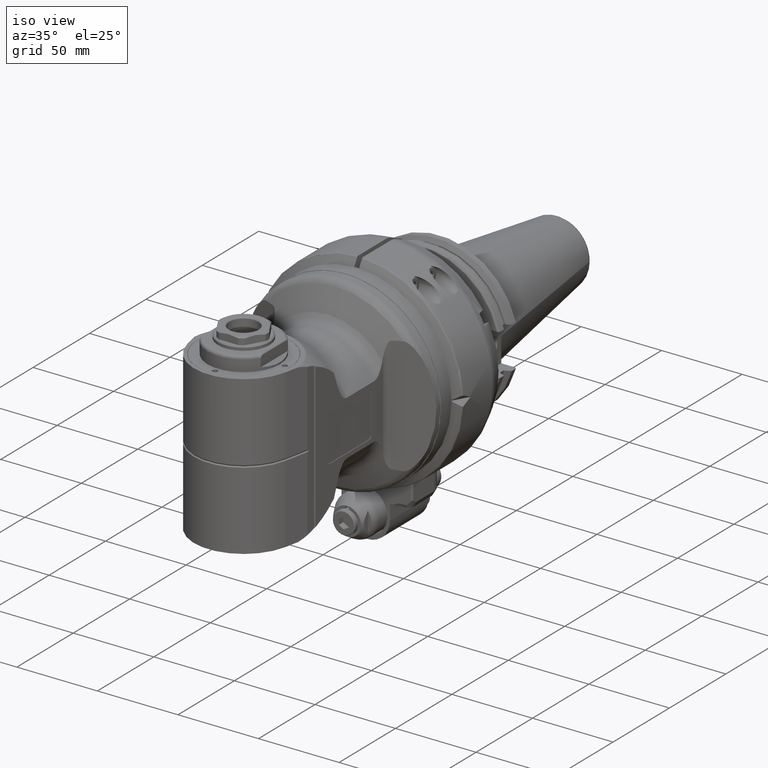
[diagram: clean part render]
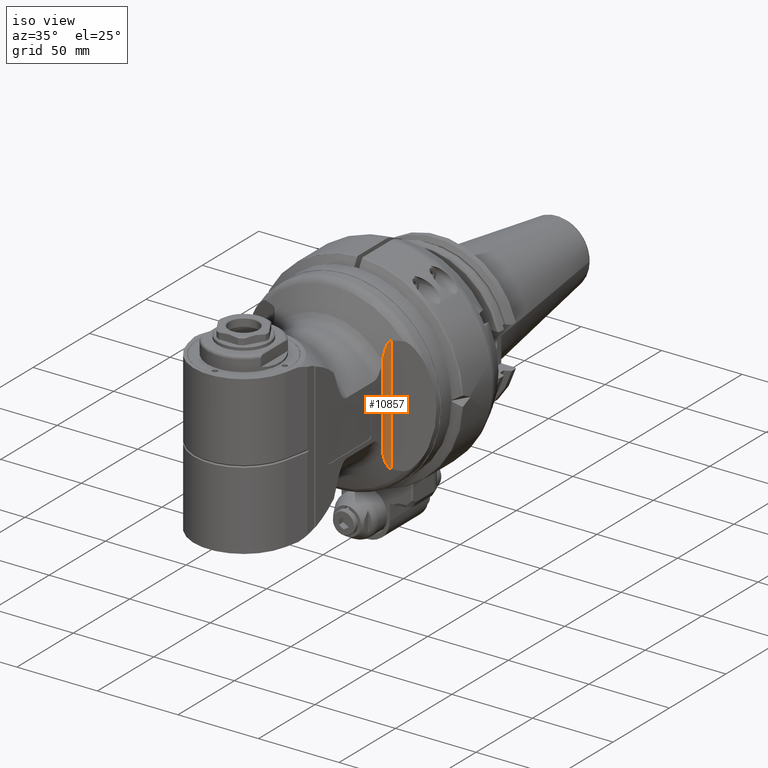
[diagram: same view with one face highlighted and labeled with its STEP entity id]
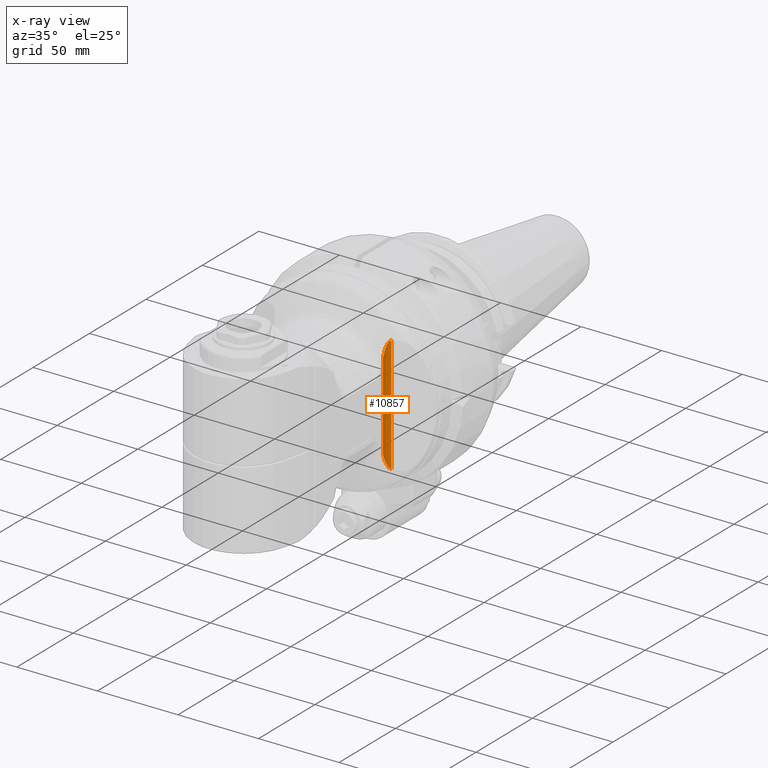
[diagram: x-ray of the same camera — body ghosted, the highlighted face saturated]
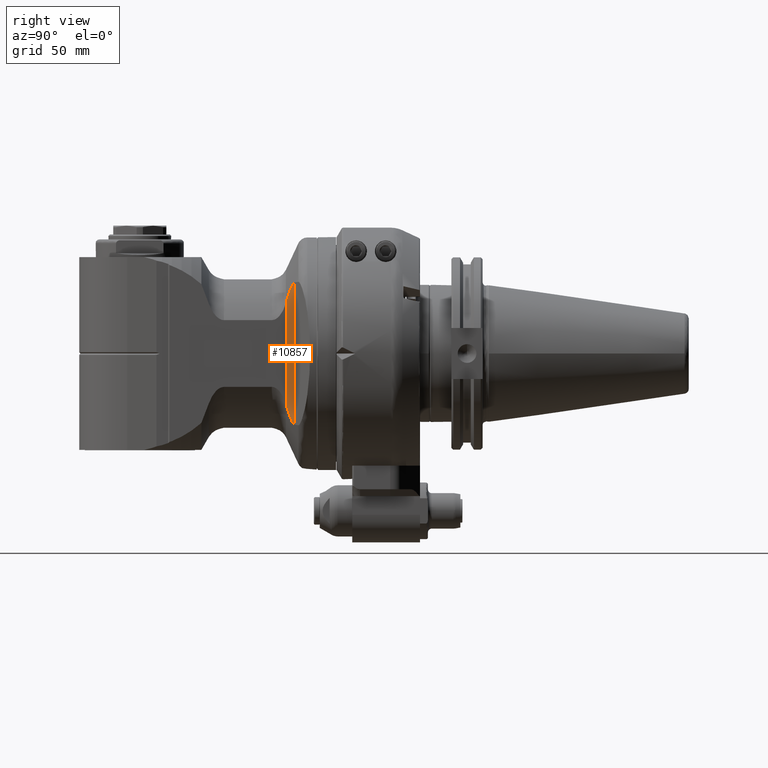
[diagram: same view with one face highlighted and labeled with its STEP entity id]
A machine part, iso view. The second image highlights one B-rep face of the part: STEP entity #10857.
The next image is the same camera in x-ray: the body ghosted, the highlighted face saturated — about 0% of this face is hidden behind the body in this view.
A second angle (right view) of the same face is appended — the face is thin or edge-on in the first view.
In plain terms, the highlighted cylindrical surface (edge-blend (fillet) strip) has radius 4 mm, axis along (-0, 0, -1).
Its self-contained STEP definition (entity closure, byte-faithful):
#307=B_SPLINE_CURVE_WITH_KNOTS('',3,(#21977,#21978,#21979,#21980,#21981,
#21982,#21983,#21984,#21985,#21986,#21987,#21988,#21989,#21990,#21991,#21992),
 .UNSPECIFIED.,.F.,.F.,(4,2,2,2,2,2,2,4),(-8.25576337559417,-8.16395901462912,
-7.80669181368098,-7.63132471234137,-7.53509889223819,-7.34203647450375,
-7.27460050669652,-7.24161732158409),.UNSPECIFIED.);
#308=B_SPLINE_CURVE_WITH_KNOTS('',3,(#21996,#21997,#21998,#21999,#22000,
#22001,#22002,#22003,#22004,#22005,#22006,#22007,#22008,#22009),
 .UNSPECIFIED.,.F.,.F.,(4,2,2,2,2,2,4),(-3.63255531867688,-3.59269873547277,
-3.5327491167256,-3.40884183733871,-3.28493455795182,-3.03711999917804,
-2.57561094929758),.UNSPECIFIED.);
#1001=LINE('',#21501,#1694);
#1027=LINE('',#21995,#1720);
#1694=VECTOR('',#14693,53.76405732138);
#1720=VECTOR('',#14853,72.1242435735);
#1994=CYLINDRICAL_SURFACE('',#12049,4.);
#2901=FACE_OUTER_BOUND('',#3623,.T.);
#3623=EDGE_LOOP('',(#9530,#9531,#9532,#9533));
#5202=VERTEX_POINT('',#21496);
#5203=VERTEX_POINT('',#21500);
#5289=VERTEX_POINT('',#21975);
#5290=VERTEX_POINT('',#21994);
#6635=EDGE_CURVE('',#5203,#5202,#1001,.T.);
#6752=EDGE_CURVE('',#5202,#5289,#307,.T.);
#6753=EDGE_CURVE('',#5289,#5290,#1027,.T.);
#6754=EDGE_CURVE('',#5290,#5203,#308,.T.);
#9530=ORIENTED_EDGE('',*,*,#6752,.T.);
#9531=ORIENTED_EDGE('',*,*,#6753,.T.);
#9532=ORIENTED_EDGE('',*,*,#6754,.T.);
#9533=ORIENTED_EDGE('',*,*,#6635,.T.);
#10857=ADVANCED_FACE('',(#2901),#1994,.F.);
#12049=AXIS2_PLACEMENT_3D('',#21993,#14851,#14852);
#14693=DIRECTION('',(-3.533203158637E-11,1.,-5.984179148329E-13));
#14851=DIRECTION('center_axis',(0.,1.,0.));
#14852=DIRECTION('ref_axis',(0.,0.,-1.));
#14853=DIRECTION('',(0.,-1.,0.));
#21496=CARTESIAN_POINT('',(203.363925961156,26.8820293902331,34.0000000486926));
#21500=CARTESIAN_POINT('',(203.363925963022,-26.8820293838421,34.0000000487034));
#21501=CARTESIAN_POINT('',(203.3639256928,-26.88202865754,34.00000014611));
#21975=CARTESIAN_POINT('',(199.6051566057,36.06212178675,36.63191942664));
#21977=CARTESIAN_POINT('Ctrl Pts',(203.363926089207,26.8820294272666,34.0000000000001));
#21978=CARTESIAN_POINT('Ctrl Pts',(203.273795003369,27.1936758536154,34.000000022526));
#21979=CARTESIAN_POINT('Ctrl Pts',(203.183702753213,27.4979443579174,34.0030763660376));
#21980=CARTESIAN_POINT('Ctrl Pts',(202.750476659065,28.9304906979183,34.0322539598207));
#21981=CARTESIAN_POINT('Ctrl Pts',(202.304381177674,30.2854040625854,34.1185455683438));
#21982=CARTESIAN_POINT('Ctrl Pts',(201.702254979656,31.9387735637612,34.3552474449601));
#21983=CARTESIAN_POINT('Ctrl Pts',(201.455284966969,32.584206915034,34.4755783454566));
#21984=CARTESIAN_POINT('Ctrl Pts',(201.122077062777,33.3996647561447,34.6843526827933));
#21985=CARTESIAN_POINT('Ctrl Pts',(200.977156019247,33.741398110545,34.7861698763569));
#21986=CARTESIAN_POINT('Ctrl Pts',(200.604316708804,34.578341200684,35.0868029985124));
#21987=CARTESIAN_POINT('Ctrl Pts',(200.294203214008,35.2181684523155,35.3881670021329));
#21988=CARTESIAN_POINT('Ctrl Pts',(199.927231964395,35.7733005341851,35.9459787136659));
#21989=CARTESIAN_POINT('Ctrl Pts',(199.823736294382,35.9081806927129,36.1249607521001));
#21990=CARTESIAN_POINT('Ctrl Pts',(199.686128565686,36.026170103742,36.423467595977));
#21991=CARTESIAN_POINT('Ctrl Pts',(199.643418256451,36.0519458861374,36.526796405385));
#21992=CARTESIAN_POINT('Ctrl Pts',(199.605156605765,36.0621217866398,36.6319194266743));
#21993=CARTESIAN_POINT('Origin',(203.3639270889,-70.8000024,38.));
#21994=CARTESIAN_POINT('',(199.6051566057,-36.06212178675,36.63191942664));
#21995=CARTESIAN_POINT('',(199.6051566057,36.06212178675,36.63191942664));
#21996=CARTESIAN_POINT('Ctrl Pts',(199.605156605765,-36.0621217866398,36.6319194266742));
#21997=CARTESIAN_POINT('Ctrl Pts',(199.651407867786,-36.0498210042116,36.5048451286534));
#21998=CARTESIAN_POINT('Ctrl Pts',(199.704582061883,-36.0143412683029,36.3795023364944));
#21999=CARTESIAN_POINT('Ctrl Pts',(199.845630179349,-35.8797486176875,36.0869823809199));
#22000=CARTESIAN_POINT('Ctrl Pts',(199.937778190483,-35.7573468363122,35.9299480070892));
#22001=CARTESIAN_POINT('Ctrl Pts',(200.196782466145,-35.3655407127732,35.5362506303778));
#22002=CARTESIAN_POINT('Ctrl Pts',(200.358965348041,-35.0594759277667,35.3502446751655));
#22003=CARTESIAN_POINT('Ctrl Pts',(200.676287123457,-34.4163762830006,35.0288758728248));
#22004=CARTESIAN_POINT('Ctrl Pts',(200.830696252249,-34.0764873927272,34.8985300588565));
#22005=CARTESIAN_POINT('Ctrl Pts',(201.290015176756,-33.0120824548597,34.5585080418454));
#22006=CARTESIAN_POINT('Ctrl Pts',(201.588638417706,-32.2481099704604,34.4017907840756));
#22007=CARTESIAN_POINT('Ctrl Pts',(202.424004705391,-29.9616004970997,34.0681982500815));
#22008=CARTESIAN_POINT('Ctrl Pts',(202.931790914384,-28.3762240408651,34.000000107801));
#22009=CARTESIAN_POINT('Ctrl Pts',(203.363926091056,-26.882029420871,34.0000000000001));